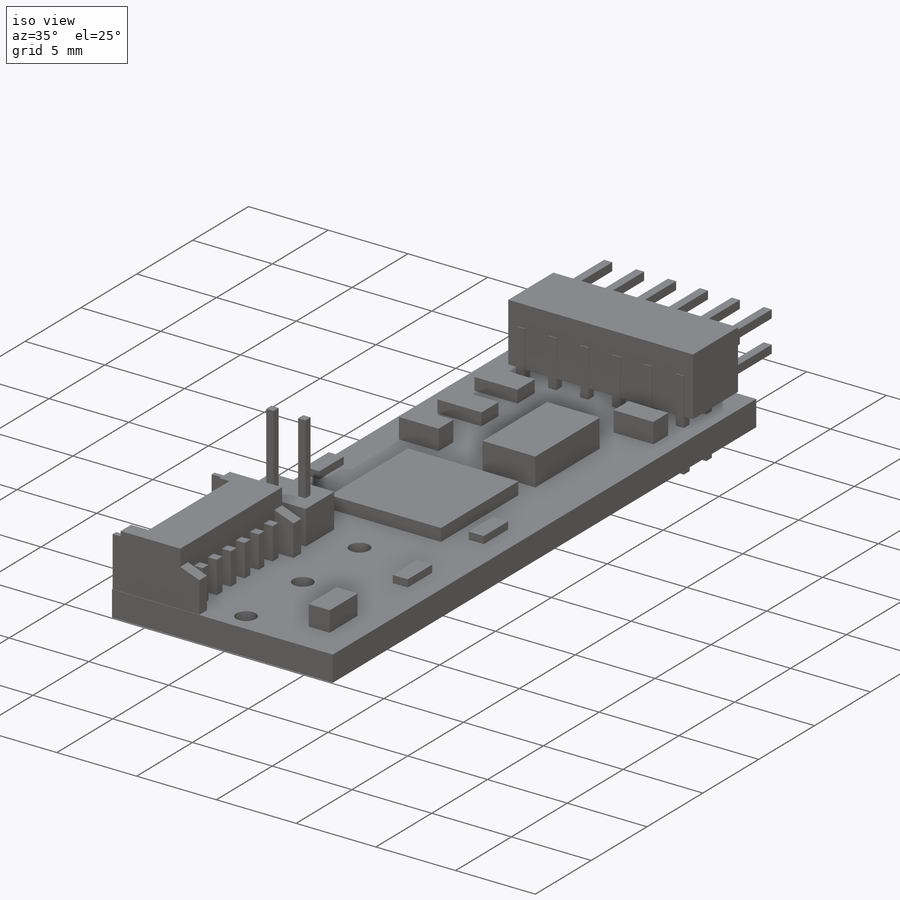
[diagram: iso view]
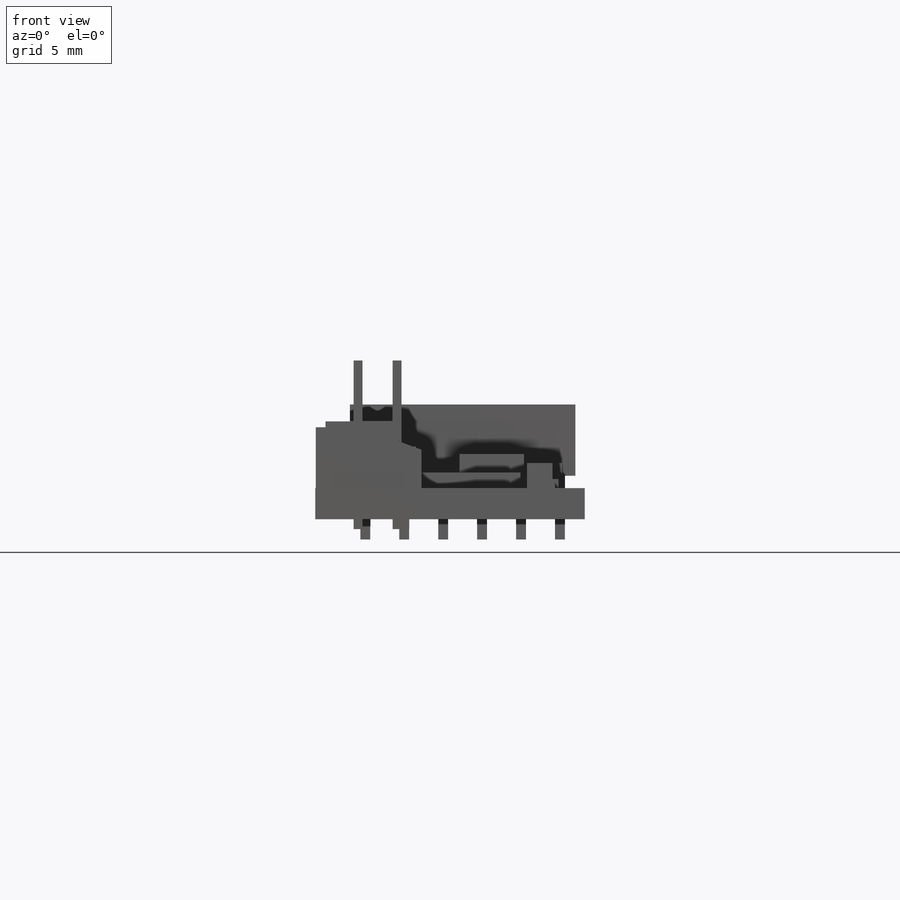
[diagram: front view]
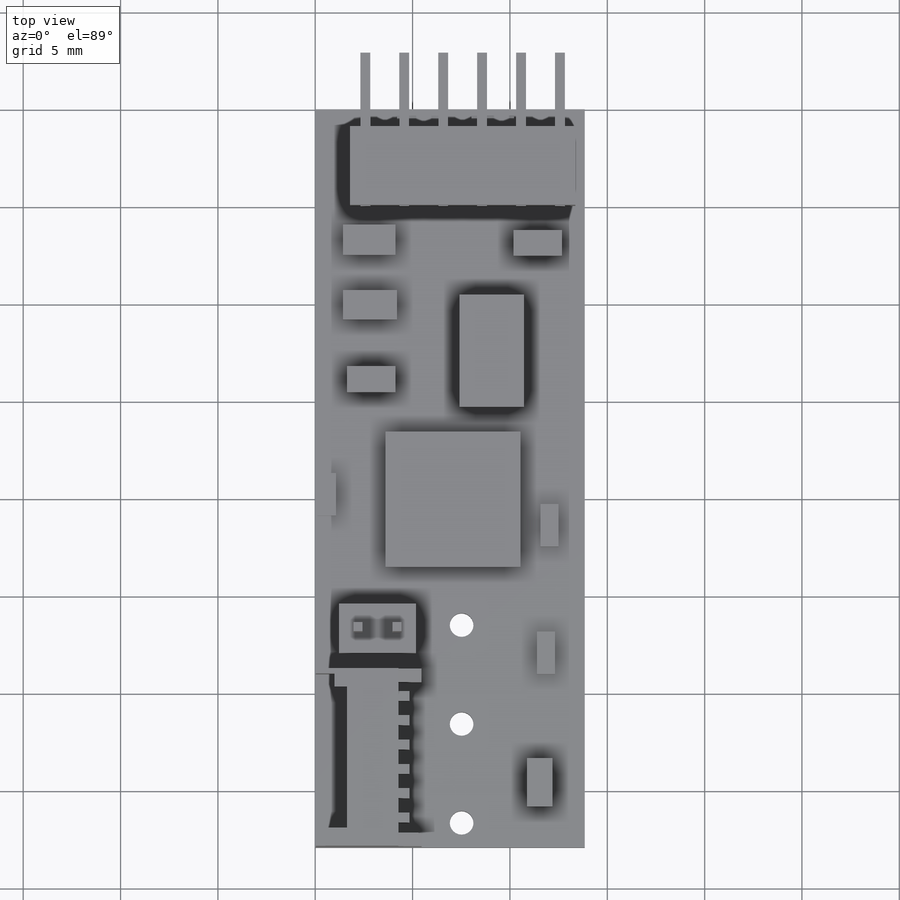
[diagram: top view]
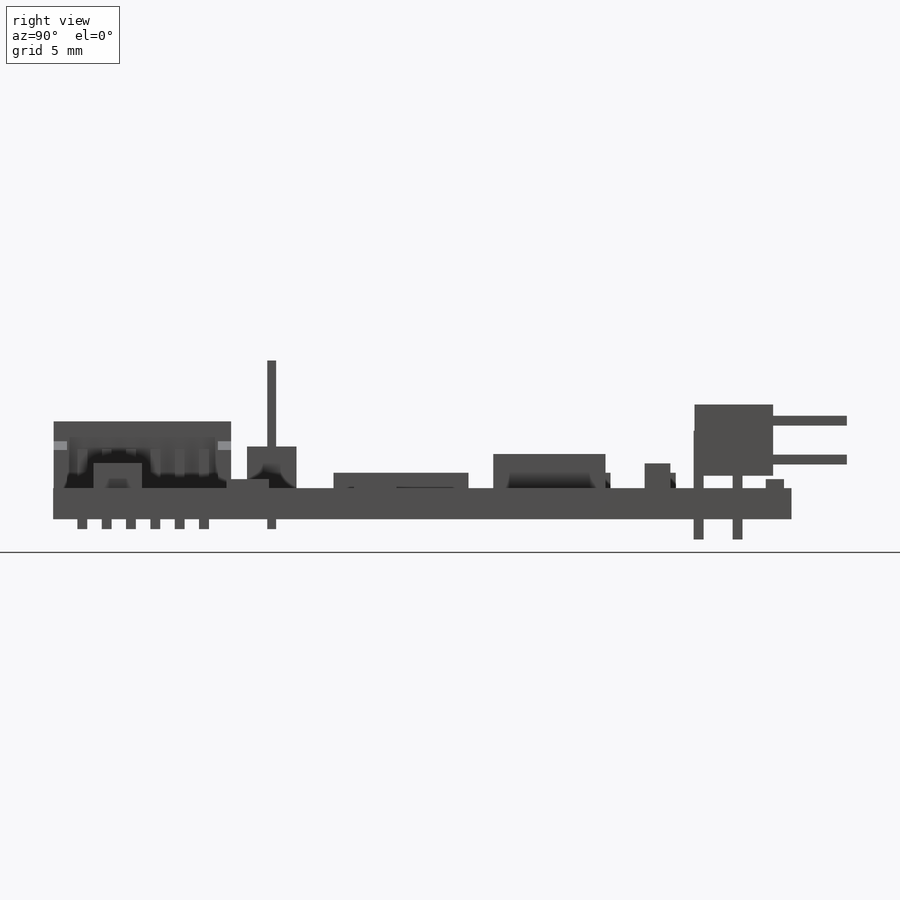
[diagram: right view]
SOLIDWORKS PART (.sldprt)
format: sldprt  version: not decoded by parser v0  size: 612,864 bytes
history: native  units: mm
features: sketch x15, extrude x12, cut_extrude x3, plane x3, pattern_linear x3, material x1 (+14 scaffold rows collapsed)
feature tree (51):
  scaffold x14  (default folders/planes/origin — collapsed)
  material  "Material <not specified>"
  sketch  "Sketch1"  dims[D3=1.2192mm D1=13.843mm D2=37.9222mm D4=10.16mm D5=1.27mm D6=6.3246mm]
  extrude  "PCB outline"  Depth=1.6002mm
  sketch  "Sketch2"  dims[D1=0.0254mm D2=0.0254mm D3=5.4356mm D4=9.1186mm D5=0.6858mm D6=1.1938mm]
  extrude  "Interface connector 1"  Depth=3.429mm
  sketch  "Sketch3"  dims[D1=0.3048mm D2=0.3048mm D3=0.254mm D4=0.254mm]
  cut_extrude  "Interface connector 2"  Depth=2.794mm
  sketch  "Sketch4"
  cut_extrude  "Interface connector 3"  [1 undecoded]
  sketch  "Sketch5"  dims[D1=1.6002mm D2=7.239mm D3=0.9652mm]
  cut_extrude  "Interface connector 4"  [1 undecoded]
  plane  "Main connector top plane"  Offset=4.2926mm
  sketch  "Sketch6"  dims[D1=4.0386mm D2=11.5824mm D3=0.4826mm D4=0.9398mm]
  extrude  "Main connector housing"  Depth=3.6576mm
  sketch  "Sketch7"  dims[D1=0.508mm D2=0.508mm D3=5.0mm D4=1.0mm]
  extrude  "Main connector pins 1"  Depth=3.7846mm
  pattern_linear  "Main connector pins 2"  Count1=6 Count2=2 Spacing1=2mm Spacing2=2mm
  plane  "Plane2"  Offset=1.0414mm
  sketch  "Sketch8"  dims[D1=0.508mm D2=2.7686mm]
  extrude  "Main connector pins 3"  Depth=5.588mm
  pattern_linear  "Main connector pins 4"  Count1=6 Count2=2 Spacing1=2mm Spacing2=2mm
  sketch  "Sketch9"  dims[D1=2.54mm D2=3.9624mm D3=1.2192mm D4=9.9568mm]
  extrude  "Lock connector housing"  Depth=2.1336mm
  plane  "Plane3"  Offset=2.1082mm
  sketch  "Sketch10"  dims[D1=0.4572mm D2=1.0mm D3=1.0mm]
  extrude  "Lock connector pins"  Depth=8.6614mm
  sketch  "Sketch11"  dims[D1=0.508mm D2=0.762mm D3=4.445mm D4=1.4986mm]
  extrude  "Interface connector pins 1"  Depth=4.1148mm
  pattern_linear  "Interface connector pins 2"  Count1=6 Count2=1 Spacing1=1.25mm Spacing2=2mm
  sketch  "Sketch12"  dims[D1=0.9398mm D2=2.1844mm D3=8.89mm D4=15.4432mm D5=17.0434mm D6=0.381mm D7=1.3462mm D8=1.524mm D9=0.127mm D10=4.191mm D11=8.0264mm]
  extrude  "Resistors"  Depth=0.4572mm
  sketch  "Sketch13"  dims[D1=6.9342mm D2=14.4018mm D3=3.302mm D4=1.524mm D5=1.5494mm D6=2.7686mm D7=2.6924mm D8=1.4224mm D9=5.9436mm D10=9.2964mm]
  extrude  "Diode, MCU, V-reg"  Depth=0.7874mm
  sketch  "Sketch14"  dims[D1=2.4892mm D2=1.3208mm D3=1.651mm D4=2.0828mm D5=1.6256mm D6=23.368mm D7=1.1684mm D8=6.223mm]
  extrude  "Capacitors"  Depth=1.27mm
  sketch  "Sketch15"  dims[D1=5.7658mm D2=3.302mm D3=3.1242mm D4=22.606mm]
  extrude  "Transistor"  Depth=1.7526mm
decode coverage: 30 of 33 modeling features carry decoded parameters
note: 2 parameter values undecoded
note: suppression state not decoded; provenance and decode notes live in map.json
